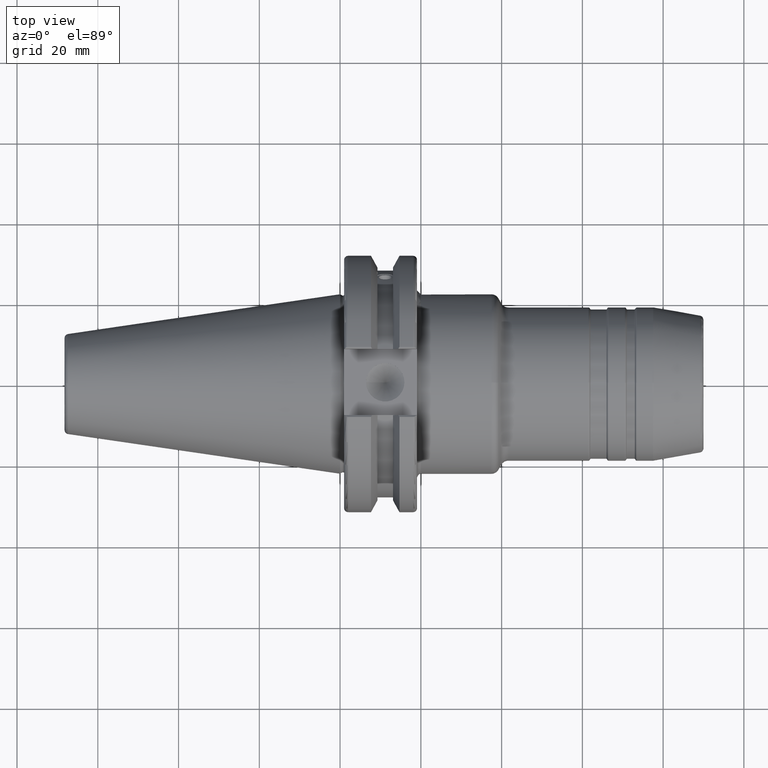
[diagram: clean part render]
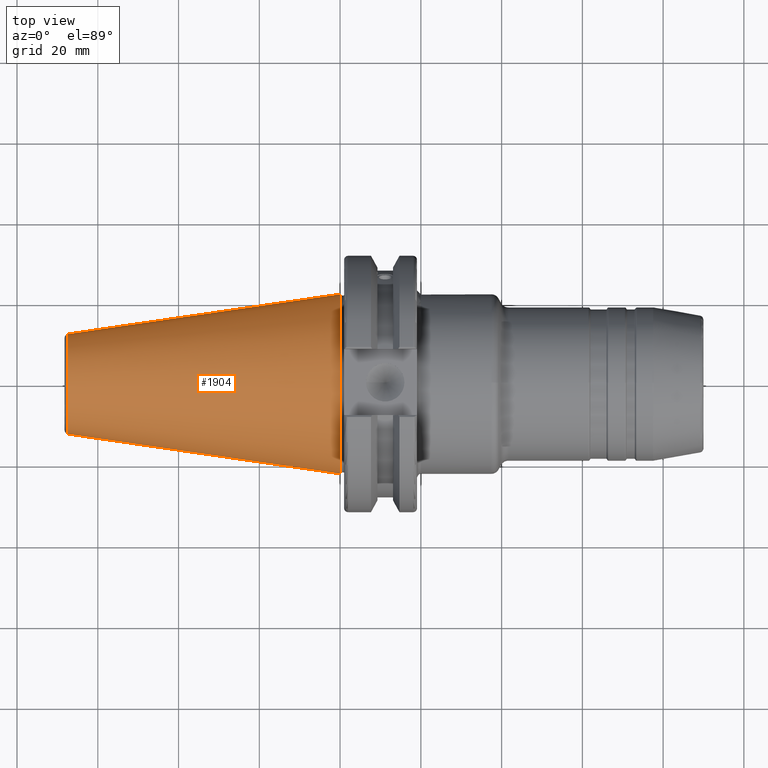
[diagram: same view with one face highlighted and labeled with its STEP entity id]
A machine part, top view. The second image highlights one B-rep face of the part: STEP entity #1904.
In plain terms, the highlighted conical surface has half-angle 8.297 deg.
Its self-contained STEP definition (entity closure, byte-faithful):
#247=LINE('',#3677,#340);
#340=VECTOR('',#2710,17.2484375);
#366=CONICAL_SURFACE('',#2163,17.2484375,0.144812498238939);
#450=FACE_OUTER_BOUND('',#568,.T.);
#568=EDGE_LOOP('',(#1668,#1669,#1670,#1671,#1672));
#707=CIRCLE('',#2157,12.3966635780937);
#708=CIRCLE('',#2158,12.3966635780937);
#712=CIRCLE('',#2164,22.225);
#907=VERTEX_POINT('',#3664);
#908=VERTEX_POINT('',#3665);
#911=VERTEX_POINT('',#3675);
#1177=EDGE_CURVE('',#907,#908,#707,.T.);
#1178=EDGE_CURVE('',#908,#907,#708,.T.);
#1182=EDGE_CURVE('',#911,#911,#712,.T.);
#1183=EDGE_CURVE('',#911,#908,#247,.T.);
#1668=ORIENTED_EDGE('',*,*,#1182,.F.);
#1669=ORIENTED_EDGE('',*,*,#1183,.T.);
#1670=ORIENTED_EDGE('',*,*,#1177,.F.);
#1671=ORIENTED_EDGE('',*,*,#1178,.F.);
#1672=ORIENTED_EDGE('',*,*,#1183,.F.);
#1904=ADVANCED_FACE('',(#450),#366,.T.);
#2157=AXIS2_PLACEMENT_3D('',#3666,#2694,#2695);
#2158=AXIS2_PLACEMENT_3D('',#3667,#2696,#2697);
#2163=AXIS2_PLACEMENT_3D('',#3674,#2706,#2707);
#2164=AXIS2_PLACEMENT_3D('',#3676,#2708,#2709);
#2694=DIRECTION('center_axis',(-1.,0.,0.));
#2695=DIRECTION('ref_axis',(0.,-1.,3.06161699786838E-17));
#2696=DIRECTION('center_axis',(-1.,0.,0.));
#2697=DIRECTION('ref_axis',(0.,-1.,3.06161699786838E-17));
#2706=DIRECTION('center_axis',(1.,0.,0.));
#2707=DIRECTION('ref_axis',(0.,1.,0.));
#2708=DIRECTION('center_axis',(1.,0.,0.));
#2709=DIRECTION('ref_axis',(0.,0.,-1.));
#2710=DIRECTION('',(-0.989532981063282,0.144306893071729,1.76724974695192E-17));
#3664=CARTESIAN_POINT('',(-67.3943068930717,-1.5181534371019E-15,12.3966635780937));
#3665=CARTESIAN_POINT('',(-67.3943068930718,-12.3966635780937,-1.5181534371019E-15));
#3666=CARTESIAN_POINT('Origin',(-67.3943068930717,0.,-1.89769179637738E-15));
#3667=CARTESIAN_POINT('Origin',(-67.3943068930717,0.,-1.89769179637738E-15));
#3674=CARTESIAN_POINT('Origin',(-34.125,0.,0.));
#3675=CARTESIAN_POINT('',(0.,-22.225,-2.72177751110499E-15));
#3676=CARTESIAN_POINT('Origin',(0.,0.,0.));
#3677=CARTESIAN_POINT('',(-34.125,-17.2484375,-2.11232437746682E-15));